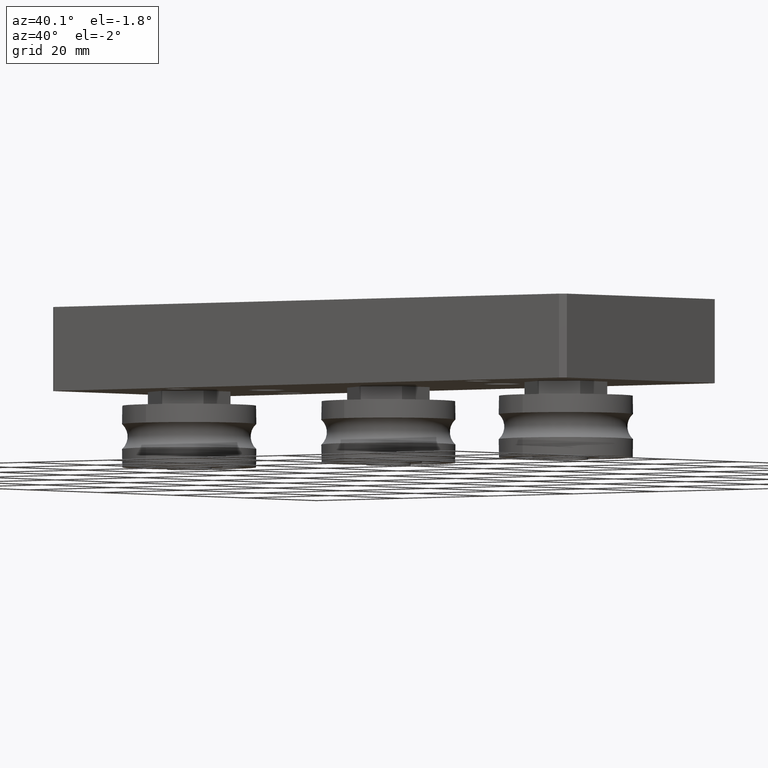
[diagram: clean part render]
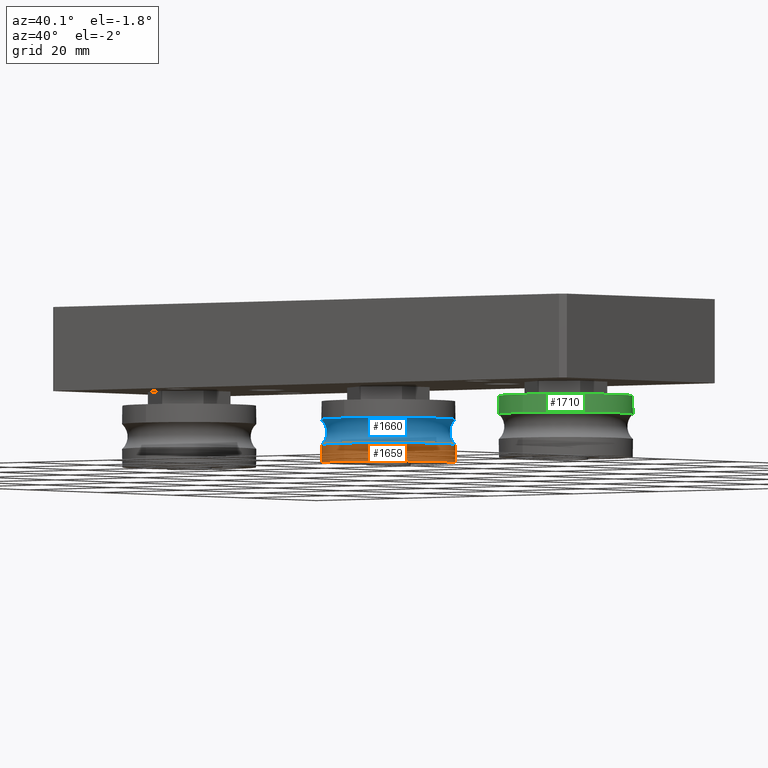
[diagram: same view with three faces highlighted in distinct colors, each labeled with its STEP entity id]
A machine part, auxiliary view with three faces highlighted in distinct colors.
Their STEP definitions:

[orange] entity #1659 — the highlighted cylindrical surface (bore or boss wall) has radius 12 mm, axis along (0, -0, 1).
#134=CYLINDRICAL_SURFACE('',#2017,12.);
#236=CIRCLE('',#2016,12.);
#237=CIRCLE('',#2018,12.);
#238=CIRCLE('',#2019,12.);
#335=FACE_OUTER_BOUND('',#467,.T.);
#467=EDGE_LOOP('',(#1329,#1330,#1331,#1332,#1333));
#604=LINE('',#2921,#720);
#720=VECTOR('',#2390,12.);
#841=VERTEX_POINT('',#2915);
#842=VERTEX_POINT('',#2918);
#843=VERTEX_POINT('',#2919);
#1017=EDGE_CURVE('',#841,#841,#236,.T.);
#1018=EDGE_CURVE('',#842,#843,#237,.T.);
#1019=EDGE_CURVE('',#842,#841,#604,.T.);
#1020=EDGE_CURVE('',#843,#842,#238,.T.);
#1329=ORIENTED_EDGE('',*,*,#1018,.F.);
#1330=ORIENTED_EDGE('',*,*,#1019,.T.);
#1331=ORIENTED_EDGE('',*,*,#1017,.T.);
#1332=ORIENTED_EDGE('',*,*,#1019,.F.);
#1333=ORIENTED_EDGE('',*,*,#1020,.F.);
#1659=ADVANCED_FACE('',(#335),#134,.T.);
#2016=AXIS2_PLACEMENT_3D('',#2916,#2384,#2385);
#2017=AXIS2_PLACEMENT_3D('',#2917,#2386,#2387);
#2018=AXIS2_PLACEMENT_3D('',#2920,#2388,#2389);
#2019=AXIS2_PLACEMENT_3D('',#2922,#2391,#2392);
#2384=DIRECTION('center_axis',(1.,0.,0.));
#2385=DIRECTION('ref_axis',(0.,1.,0.));
#2386=DIRECTION('center_axis',(1.,0.,0.));
#2387=DIRECTION('ref_axis',(0.,1.,0.));
#2388=DIRECTION('center_axis',(1.,0.,0.));
#2389=DIRECTION('ref_axis',(0.,1.,0.));
#2390=DIRECTION('',(-1.,0.,0.));
#2391=DIRECTION('center_axis',(1.,0.,0.));
#2392=DIRECTION('ref_axis',(0.,1.,0.));
#2915=CARTESIAN_POINT('',(-5.5,-12.,-1.46957615897682E-15));
#2916=CARTESIAN_POINT('Origin',(-5.5,0.,0.));
#2917=CARTESIAN_POINT('Origin',(-3.86803398874989,0.,0.));
#2918=CARTESIAN_POINT('',(-2.23606797749979,-12.,-1.46957615897682E-15));
#2919=CARTESIAN_POINT('',(-2.23606797749979,-1.46957615897682E-15,12.));
#2920=CARTESIAN_POINT('Origin',(-2.23606797749979,0.,0.));
#2921=CARTESIAN_POINT('',(-3.86803398874989,-12.,-1.46957615897682E-15));
#2922=CARTESIAN_POINT('Origin',(-2.23606797749979,0.,0.));

[blue] entity #1660 — the highlighted toroidal blend (fillet) surface has major radius 14 mm and minor (blend) radius 3 mm.
#74=TOROIDAL_SURFACE('',#2020,14.,3.);
#237=CIRCLE('',#2018,12.);
#238=CIRCLE('',#2019,12.);
#239=CIRCLE('',#2021,3.);
#240=CIRCLE('',#2022,12.);
#241=CIRCLE('',#2023,12.);
#336=FACE_OUTER_BOUND('',#468,.T.);
#468=EDGE_LOOP('',(#1334,#1335,#1336,#1337,#1338,#1339));
#842=VERTEX_POINT('',#2918);
#843=VERTEX_POINT('',#2919);
#844=VERTEX_POINT('',#2924);
#845=VERTEX_POINT('',#2926);
#1018=EDGE_CURVE('',#842,#843,#237,.T.);
#1020=EDGE_CURVE('',#843,#842,#238,.T.);
#1021=EDGE_CURVE('',#843,#844,#239,.T.);
#1022=EDGE_CURVE('',#845,#844,#240,.T.);
#1023=EDGE_CURVE('',#844,#845,#241,.T.);
#1334=ORIENTED_EDGE('',*,*,#1018,.T.);
#1335=ORIENTED_EDGE('',*,*,#1021,.T.);
#1336=ORIENTED_EDGE('',*,*,#1022,.F.);
#1337=ORIENTED_EDGE('',*,*,#1023,.F.);
#1338=ORIENTED_EDGE('',*,*,#1021,.F.);
#1339=ORIENTED_EDGE('',*,*,#1020,.T.);
#1660=ADVANCED_FACE('',(#336),#74,.F.);
#2018=AXIS2_PLACEMENT_3D('',#2920,#2388,#2389);
#2019=AXIS2_PLACEMENT_3D('',#2922,#2391,#2392);
#2020=AXIS2_PLACEMENT_3D('',#2923,#2393,#2394);
#2021=AXIS2_PLACEMENT_3D('',#2925,#2395,#2396);
#2022=AXIS2_PLACEMENT_3D('',#2927,#2397,#2398);
#2023=AXIS2_PLACEMENT_3D('',#2928,#2399,#2400);
#2388=DIRECTION('center_axis',(1.,0.,0.));
#2389=DIRECTION('ref_axis',(0.,1.,0.));
#2391=DIRECTION('center_axis',(1.,0.,0.));
#2392=DIRECTION('ref_axis',(0.,1.,0.));
#2393=DIRECTION('center_axis',(1.,0.,0.));
#2394=DIRECTION('ref_axis',(0.,0.,-1.));
#2395=DIRECTION('center_axis',(0.,-1.,-1.22464679914735E-16));
#2396=DIRECTION('ref_axis',(0.,-1.22464679914735E-16,1.));
#2397=DIRECTION('center_axis',(1.,0.,0.));
#2398=DIRECTION('ref_axis',(0.,1.,0.));
#2399=DIRECTION('center_axis',(1.,0.,0.));
#2400=DIRECTION('ref_axis',(0.,1.,0.));
#2918=CARTESIAN_POINT('',(-2.23606797749979,-12.,-1.46957615897682E-15));
#2919=CARTESIAN_POINT('',(-2.23606797749979,-1.46957615897682E-15,12.));
#2920=CARTESIAN_POINT('Origin',(-2.23606797749979,0.,0.));
#2922=CARTESIAN_POINT('Origin',(-2.23606797749979,0.,0.));
#2923=CARTESIAN_POINT('Origin',(0.,0.,0.));
#2924=CARTESIAN_POINT('',(2.23606797749979,-1.46957615897682E-15,12.));
#2925=CARTESIAN_POINT('Origin',(0.,-1.71450551880629E-15,14.));
#2926=CARTESIAN_POINT('',(2.23606797749979,-12.,-1.46957615897682E-15));
#2927=CARTESIAN_POINT('Origin',(2.23606797749979,0.,0.));
#2928=CARTESIAN_POINT('Origin',(2.23606797749979,0.,0.));

[green] entity #1710 — the highlighted cylindrical surface (bore or boss wall) has radius 12 mm, axis along (-0, -0, 1).
#150=CYLINDRICAL_SURFACE('',#2121,12.);
#281=CIRCLE('',#2119,12.);
#282=CIRCLE('',#2120,12.);
#283=CIRCLE('',#2122,12.);
#386=FACE_OUTER_BOUND('',#532,.T.);
#532=EDGE_LOOP('',(#1534,#1535,#1536,#1537,#1538));
#654=LINE('',#3165,#770);
#770=VECTOR('',#2648,12.);
#910=VERTEX_POINT('',#3157);
#911=VERTEX_POINT('',#3159);
#912=VERTEX_POINT('',#3163);
#1119=EDGE_CURVE('',#911,#910,#281,.T.);
#1120=EDGE_CURVE('',#910,#911,#282,.T.);
#1121=EDGE_CURVE('',#912,#912,#283,.T.);
#1122=EDGE_CURVE('',#912,#911,#654,.T.);
#1534=ORIENTED_EDGE('',*,*,#1121,.F.);
#1535=ORIENTED_EDGE('',*,*,#1122,.T.);
#1536=ORIENTED_EDGE('',*,*,#1119,.T.);
#1537=ORIENTED_EDGE('',*,*,#1120,.T.);
#1538=ORIENTED_EDGE('',*,*,#1122,.F.);
#1710=ADVANCED_FACE('',(#386),#150,.T.);
#2119=AXIS2_PLACEMENT_3D('',#3160,#2640,#2641);
#2120=AXIS2_PLACEMENT_3D('',#3161,#2642,#2643);
#2121=AXIS2_PLACEMENT_3D('',#3162,#2644,#2645);
#2122=AXIS2_PLACEMENT_3D('',#3164,#2646,#2647);
#2640=DIRECTION('center_axis',(1.,0.,0.));
#2641=DIRECTION('ref_axis',(0.,1.,0.));
#2642=DIRECTION('center_axis',(1.,0.,0.));
#2643=DIRECTION('ref_axis',(0.,1.,0.));
#2644=DIRECTION('center_axis',(1.,0.,0.));
#2645=DIRECTION('ref_axis',(0.,1.,0.));
#2646=DIRECTION('center_axis',(1.,0.,0.));
#2647=DIRECTION('ref_axis',(0.,1.,0.));
#2648=DIRECTION('',(-1.,0.,0.));
#3157=CARTESIAN_POINT('',(2.23606797749979,-1.46957615897682E-15,12.));
#3159=CARTESIAN_POINT('',(2.23606797749979,-12.,-1.46957615897682E-15));
#3160=CARTESIAN_POINT('Origin',(2.23606797749979,0.,0.));
#3161=CARTESIAN_POINT('Origin',(2.23606797749979,0.,0.));
#3162=CARTESIAN_POINT('Origin',(3.86803398874989,0.,0.));
#3163=CARTESIAN_POINT('',(5.5,-12.,-1.46957615897682E-15));
#3164=CARTESIAN_POINT('Origin',(5.5,0.,0.));
#3165=CARTESIAN_POINT('',(3.86803398874989,-12.,-1.46957615897682E-15));